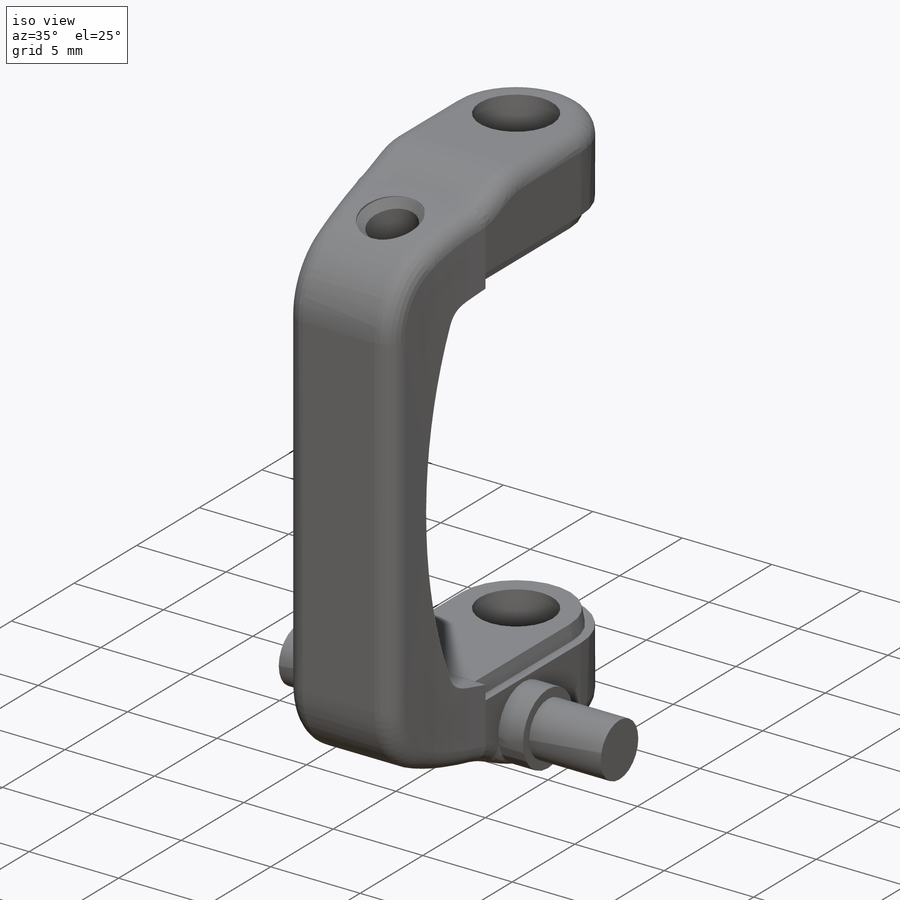
[diagram: iso view]
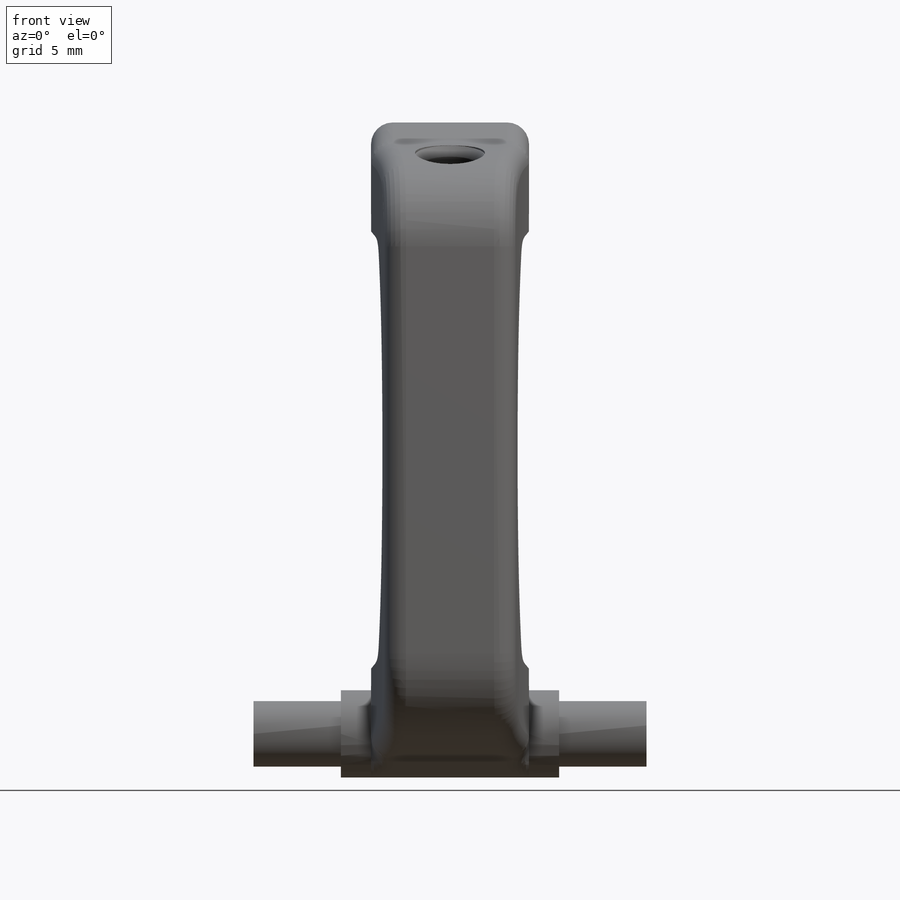
[diagram: front view]
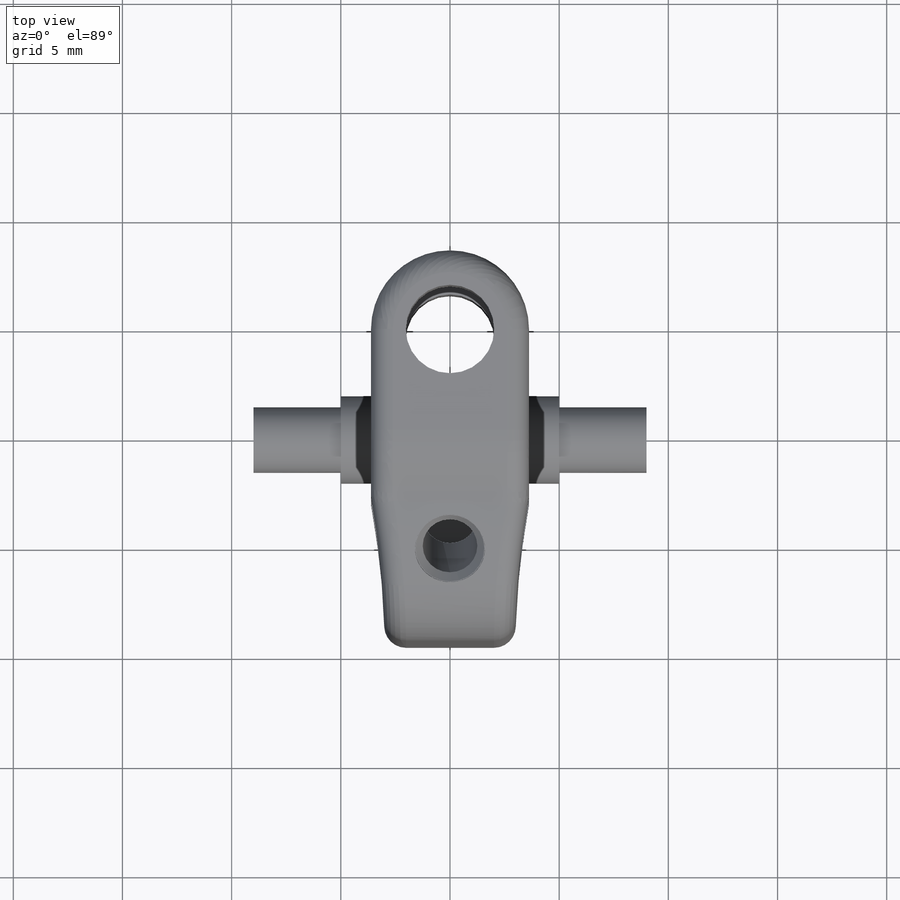
[diagram: top view]
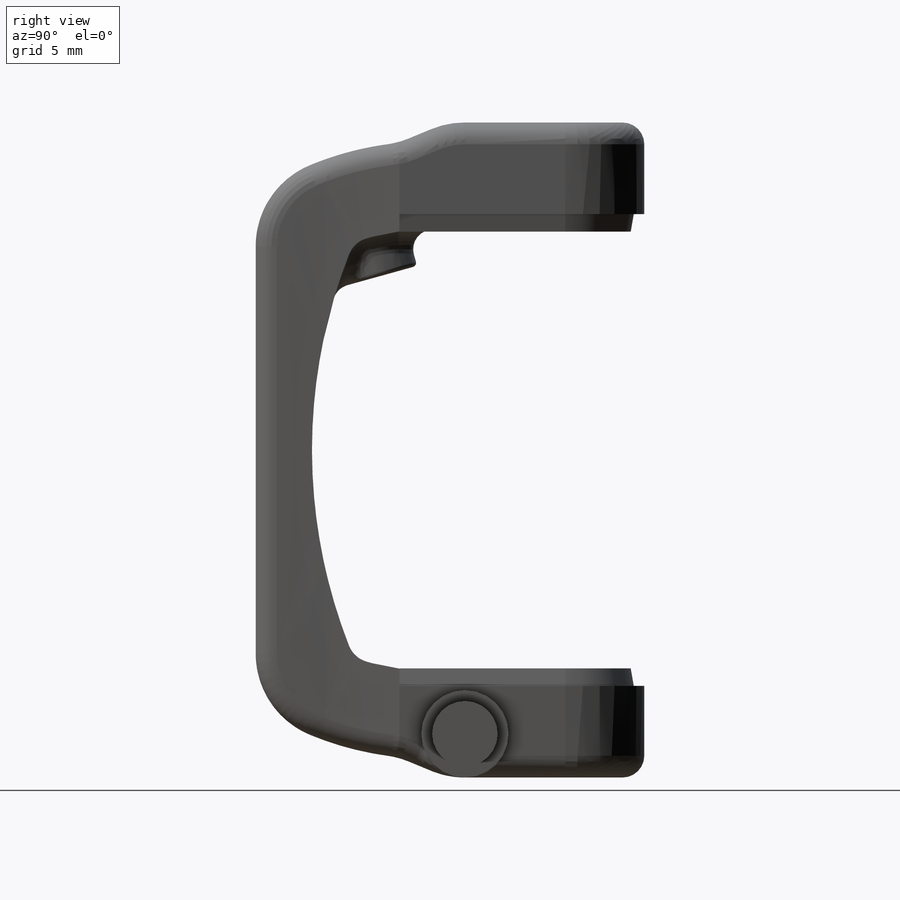
[diagram: right view]
SOLIDWORKS PART (.sldprt)
format: sldprt  version: not decoded by parser v0  size: 813,568 bytes
history: native  units: mm
features: sketch x9, fillet x5, extrude x4, chamfer x3, plane x2, cut_extrude x2, material x1, revolve x1, mirror x1, hole x1, thread x1 (+11 scaffold rows collapsed)
feature tree (41):
  scaffold x11  (default folders/planes/origin — collapsed)
  material  "ABS"
  plane  "Plane1"  Offset=13mm
  sketch  "Sketch1"  dims[c1.D1=3.2mm c1.D2=3.0mm c1.D7=4.05mm c1.D3=4.0mm c1.D4=3.0mm c1.D5=6.0mm c1.D6=4.0mm c2.D5=10.0mm]
  revolve  "Revolve2"  Angle=360deg
  extrude  "Boss-Extrude1"  [1 undecoded]
  sketch  "Sketch1<5>"  dims[D1=2.0mm D2=3.0mm]
  extrude  "Boss-Extrude4"  [1 undecoded]
  sketch  "Sketch1<6>"  dims[D1=1.5mm D2=2.0mm]
  mirror  "Mirror2"
  sketch  "Sketch2"  dims[D1=24.5mm D2=2.0mm]
  extrude  "Boss-Extrude3"  Depth=3mm
  chamfer  "Chamfer1"  Distance=4mm Angle=7.5deg
  chamfer  "Chamfer4"  Distance=3.2mm Angle=1.5deg
  chamfer  "Chamfer5"  Distance=2.2mm Angle=22.5deg
  cut_extrude  "Cut-Extrude2"  [1 undecoded]
  sketch  "Sketch1<7>"
  fillet  "Fillet1"  Radius=34mm
  fillet  "Fillet2"  Radius=4mm
  fillet  "Fillet3"  Radius=1mm GrooveHeight=0.8mm GrooveWidth=0.6mm GrooveDraftAngle=10deg
  plane  "Plane2"
  sketch  "Sketch9"  dims[D1=2.5mm D2=3.5mm]
  sketch  "Sketch3"  dims[D1=3.2mm]
  extrude  "Boss-Extrude5"  Depth=5.75mm
  fillet  "Fillet4"  Radius=0.9mm
  hole  "M3x0.5 Tapped Hole1"  [1 undecoded]
  sketch  "Sketch5"
  thread  "Hole Thread1"  Diameter=4.593475mm  [1 undecoded]
  sketch  "Sketch7"  dims[hole-wizard template sketch: 40 standard entries collapsed; hole parameters kept: c13.Tap Drill Depth=8.0mm c13.Near C'Sink Dia.=3.15mm c13.D4=~33.297463mm c13.Near C'Sink Angle=75.0deg c14.D5=~14.816244mm c14.Drill Angle=118.0deg]
  cut_extrude  "Cut-Extrude1"  [1 undecoded]
  fillet  "Fillet5"  Radius=0.2mm
decode coverage: 19 of 27 modeling features carry decoded parameters
note: ~ marks probable driven/reference dimensions
note: 6 parameter values undecoded
summary: no parameter record found for 5 features
note: suppression state not decoded; provenance and decode notes live in map.json
